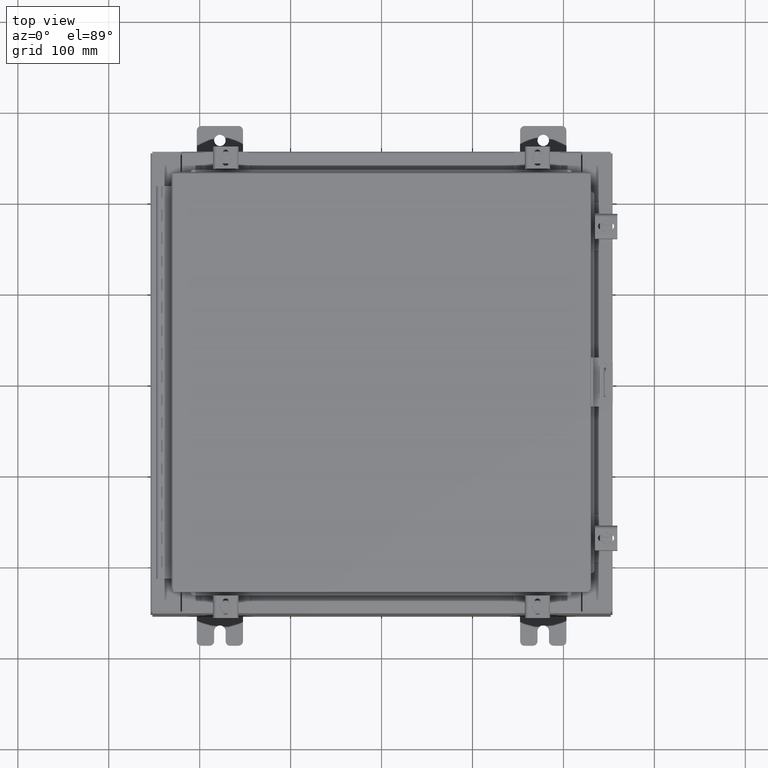
[diagram: clean part render]
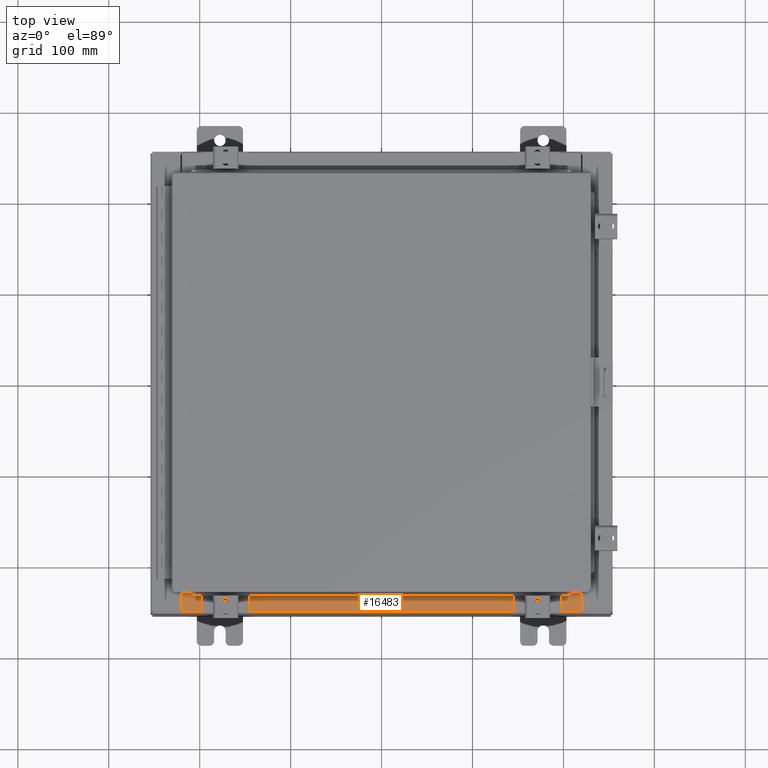
[diagram: same view with one face highlighted and labeled with its STEP entity id]
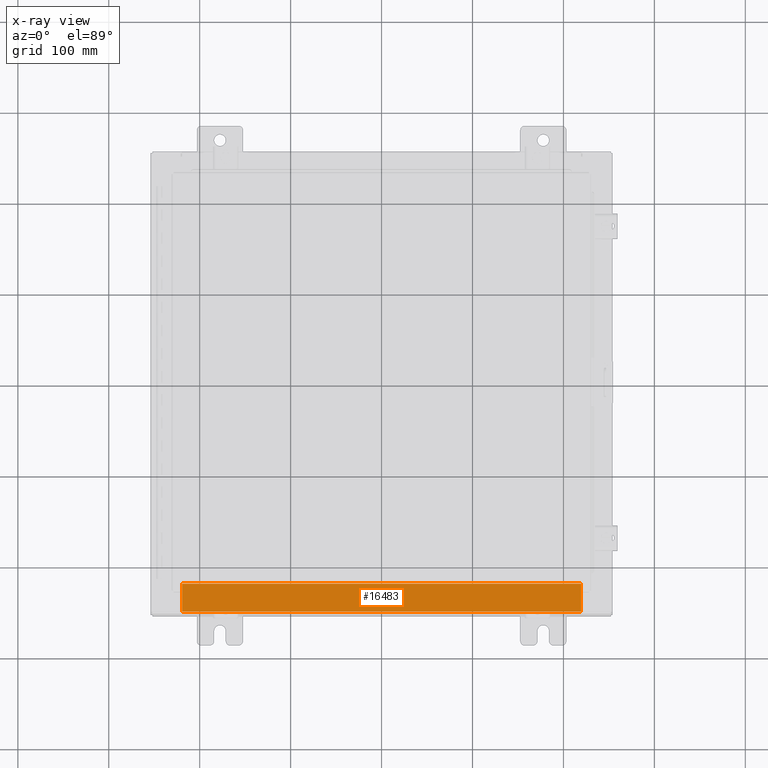
[diagram: x-ray of the same camera — body ghosted, the highlighted face saturated]
A machine part, top view. The second image highlights one B-rep face of the part: STEP entity #16483.
The next image is the same camera in x-ray: the body ghosted, the highlighted face saturated — about 0% of this face is hidden behind the body in this view.
In plain terms, the highlighted planar face has unit normal (-0, -0, 1).
Its self-contained STEP definition (entity closure, byte-faithful):
#452 = EDGE_LOOP ( 'NONE', ( #15924, #19780, #28518, #19468 ) ) ;
#1094 = DIRECTION ( 'NONE',  ( -1.000000000000000000, 0.0000000000000000000, 0.0000000000000000000 ) ) ;
#2888 = VECTOR ( 'NONE', #10346, 39.37007874015748100 ) ;
#5292 = DIRECTION ( 'NONE',  ( 0.0000000000000000000, 3.566381192773190000E-015, 1.000000000000000000 ) ) ;
#5458 = FACE_OUTER_BOUND ( 'NONE', #452, .T. ) ;
#6400 = EDGE_CURVE ( 'NONE', #22481, #12036, #8903, .T. ) ;
#7235 = LINE ( 'NONE', #14727, #13267 ) ;
#8634 = CARTESIAN_POINT ( 'NONE',  ( 8.637200000000000000, -1.300299999999999800, 4.000000000000004400 ) ) ;
#8903 = LINE ( 'NONE', #10046, #2888 ) ;
#9458 = EDGE_CURVE ( 'NONE', #20158, #12036, #15944, .T. ) ;
#10046 = CARTESIAN_POINT ( 'NONE',  ( -2.773851121247567100E-018, -0.08770000000000000000, 4.000000000000000900 ) ) ;
#10346 = DIRECTION ( 'NONE',  ( -1.000000000000000000, 3.162886113166609200E-017, -1.128005754888089100E-031 ) ) ;
#12036 = VERTEX_POINT ( 'NONE', #29444 ) ;
#12037 = VERTEX_POINT ( 'NONE', #27120 ) ;
#12644 = VECTOR ( 'NONE', #24839, 39.37007874015748100 ) ;
#12756 = DIRECTION ( 'NONE',  ( -0.0000000000000000000, 1.000000000000000000, -3.566381192773190000E-015 ) ) ;
#13267 = VECTOR ( 'NONE', #1094, 39.37007874015748100 ) ;
#14037 = EDGE_CURVE ( 'NONE', #12037, #20158, #7235, .T. ) ;
#14727 = CARTESIAN_POINT ( 'NONE',  ( 8.637200000000000000, -1.287299999999999900, 4.000000000000003600 ) ) ;
#15214 = AXIS2_PLACEMENT_3D ( 'NONE', #16534, #5292, #21215 ) ;
#15924 = ORIENTED_EDGE ( 'NONE', *, *, #9458, .F. ) ;
#15944 = LINE ( 'NONE', #28694, #28053 ) ;
#16483 = ADVANCED_FACE ( 'NONE', ( #5458 ), #18910, .T. ) ;
#16534 = CARTESIAN_POINT ( 'NONE',  ( 0.0000000000000000000, 1.425992975200418500E-014, 4.000000000000000000 ) ) ;
#18825 = CARTESIAN_POINT ( 'NONE',  ( -8.637200000000000000, -1.287299999999999200, 4.000000000000004400 ) ) ;
#18910 = PLANE ( 'NONE',  #15214 ) ;
#19468 = ORIENTED_EDGE ( 'NONE', *, *, #6400, .T. ) ;
#19564 = EDGE_CURVE ( 'NONE', #22481, #12037, #24715, .T. ) ;
#19780 = ORIENTED_EDGE ( 'NONE', *, *, #14037, .F. ) ;
#20158 = VERTEX_POINT ( 'NONE', #18825 ) ;
#21215 = DIRECTION ( 'NONE',  ( 0.0000000000000000000, -1.000000000000000000, 3.566381192773190000E-015 ) ) ;
#22481 = VERTEX_POINT ( 'NONE', #27477 ) ;
#24715 = LINE ( 'NONE', #8634, #12644 ) ;
#24839 = DIRECTION ( 'NONE',  ( -0.0000000000000000000, -1.000000000000000000, 3.566381192773190000E-015 ) ) ;
#27120 = CARTESIAN_POINT ( 'NONE',  ( 8.637200000000000000, -1.287299999999999900, 4.000000000000004400 ) ) ;
#27477 = CARTESIAN_POINT ( 'NONE',  ( 8.637200000000000000, -0.08769999999999965300, 4.000000000000000000 ) ) ;
#28053 = VECTOR ( 'NONE', #12756, 39.37007874015748100 ) ;
#28518 = ORIENTED_EDGE ( 'NONE', *, *, #19564, .F. ) ;
#28694 = CARTESIAN_POINT ( 'NONE',  ( -8.637200000000000000, -0.07469999999999973900, 4.000000000000000000 ) ) ;
#29444 = CARTESIAN_POINT ( 'NONE',  ( -8.637200000000000000, -0.08770000000000000000, 4.000000000000000000 ) ) ;